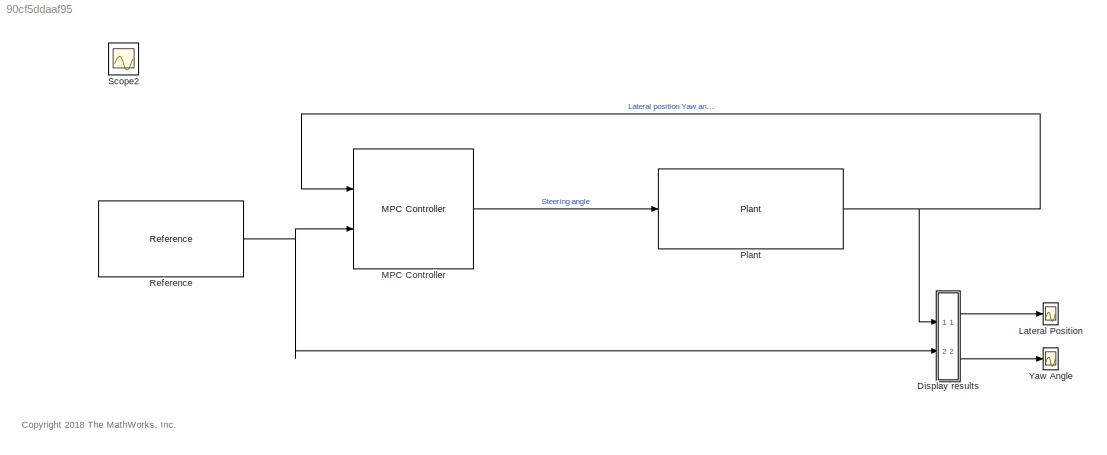
MODEL slx_90cf5ddaaf95
KIND model
CONFIG AbsTol = auto
CONFIG EnableMultiTasking = off
CONFIG FixedStep = auto
CONFIG MaxStep = auto
CONFIG MinStep = auto
CONFIG RelTol = 1e-3
CONFIG SampleTimeConstraint = Unconstrained
CONFIG SolverName = VariableStepAuto
CONFIG StartTime = 0.0
CONFIG StopTime = 15
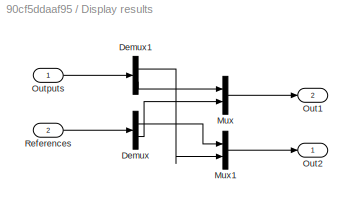
BLOCK [SubSystem] Display results
  Ports = [2, 2]
  RequestExecContextInheritance = off
  ShowPortLabels = none
BLOCK [Demux] Display results/Demux
  Outputs = 2
  Ports = [1, 2]
BLOCK [Demux] Display results/Demux1
  Outputs = 2
  Ports = [1, 2]
BLOCK [Mux] Display results/Mux
  DisplayOption = bar
  Inputs = 2
  Ports = [2, 1]
BLOCK [Mux] Display results/Mux1
  DisplayOption = bar
  Inputs = 2
  Ports = [2, 1]
BLOCK [Outport] Display results/Out1
  Port = 2
  VectorParamsAs1DForOutWhenUnconnected = off
BLOCK [Outport] Display results/Out2
  VectorParamsAs1DForOutWhenUnconnected = off
BLOCK [Inport] Display results/Outputs
BLOCK [Inport] Display results/References
  Port = 2
BLOCK [Scope] Lateral Position
  Floating = off
  NumInputPorts = 1
  Ports = [1]
  ScopeSpecificationString = Simulink.scopes.TimeScopeBlockCfg('CurrentConfiguration', extmgr.ConfigurationSet(extmgr.Configuration('Core','General UI',true),extmgr.Configuration('Core','Source UI',true),extmgr.Configuration('Sources','WiredSimulink',true,'DataLoggingVariableName','ScopeData2'),extmgr.Configuration('Visuals','Time Domain',true,'SerializedDisplays',{struct('MinYLimReal','-0.50596','MaxYLimReal','4.55046','YLab...<+1400ch>
BLOCK [Reference] MPC Controller  REF=mpclib/MPC Controller  (lib defined in mdl_ae329e0e0455)
  Ports = [2, 1]
  SCDEnableBlockLinearizationSpecification = on
  SourceBlock = mpclib/MPC Controller
  SourceProductBaseCode = MP
  SourceType = MPC
BLOCK [Reference] Plant  REF=Meldas_library/Plant
  Ports = [1, 1]
  SourceBlock = Meldas_library/Plant
BLOCK [Reference] Reference  REF=Meldas_library/Reference
  Ports = [0, 1]
  SourceBlock = Meldas_library/Reference
BLOCK [Scope] Scope2
  Floating = off
  IOType = viewer
  NumInputPorts = 1
  Ports = []
  ScopeSpecificationString = Simulink.scopes.TimeScopeBlockCfg('CurrentConfiguration', extmgr.ConfigurationSet(extmgr.Configuration('Core','General UI',true),extmgr.Configuration('Core','Source UI',true),extmgr.Configuration('Sources','WiredSimulink',true,'DataLoggingVariableName','ScopeData4'),extmgr.Configuration('Visuals','Time Domain',true,'SerializedDisplays',{struct('MinYLimReal','-0.59331','MaxYLimReal','4.55906','YLab...<+2703ch>
BLOCK [Scope] Yaw Angle
  Floating = off
  NumInputPorts = 1
  Ports = [1]
  ScopeSpecificationString = Simulink.scopes.TimeScopeBlockCfg('CurrentConfiguration', extmgr.ConfigurationSet(extmgr.Configuration('Core','General UI',true),extmgr.Configuration('Core','Source UI',true),extmgr.Configuration('Sources','WiredSimulink',true,'DataLoggingVariableName','ScopeData1'),extmgr.Configuration('Visuals','Time Domain',true,'SerializedDisplays',{struct('MinYLimReal','-0.01337','MaxYLimReal','0.10308','YLab...<+1400ch>
ANNOTATION (root): <copyright redacted>
LINE Display results/Demux1:1 -> Display results/Mux1:2
LINE Display results/Demux1:2 -> Display results/Mux:1
LINE Display results/Demux:1 -> Display results/Mux1:1
LINE Display results/Demux:2 -> Display results/Mux:2
LINE Display results/Mux1:1 -> Display results/Out2:1
LINE Display results/Mux:1 -> Display results/Out1:1
LINE Display results/Outputs:1 -> Display results/Demux1:1
LINE Display results/References:1 -> Display results/Demux:1
LINE Display results:1 -> Lateral Position:1
LINE Display results:2 -> Yaw Angle:1
LINE MPC Controller:1 -> Plant:1
NET Plant:1 -> Display results:1, MPC Controller:1
NET Reference:1 -> Display results:2, MPC Controller:2
note: NET lines group one-source signal fan-out (src -> all destinations, sorted); 1:1 wires keep LINE
